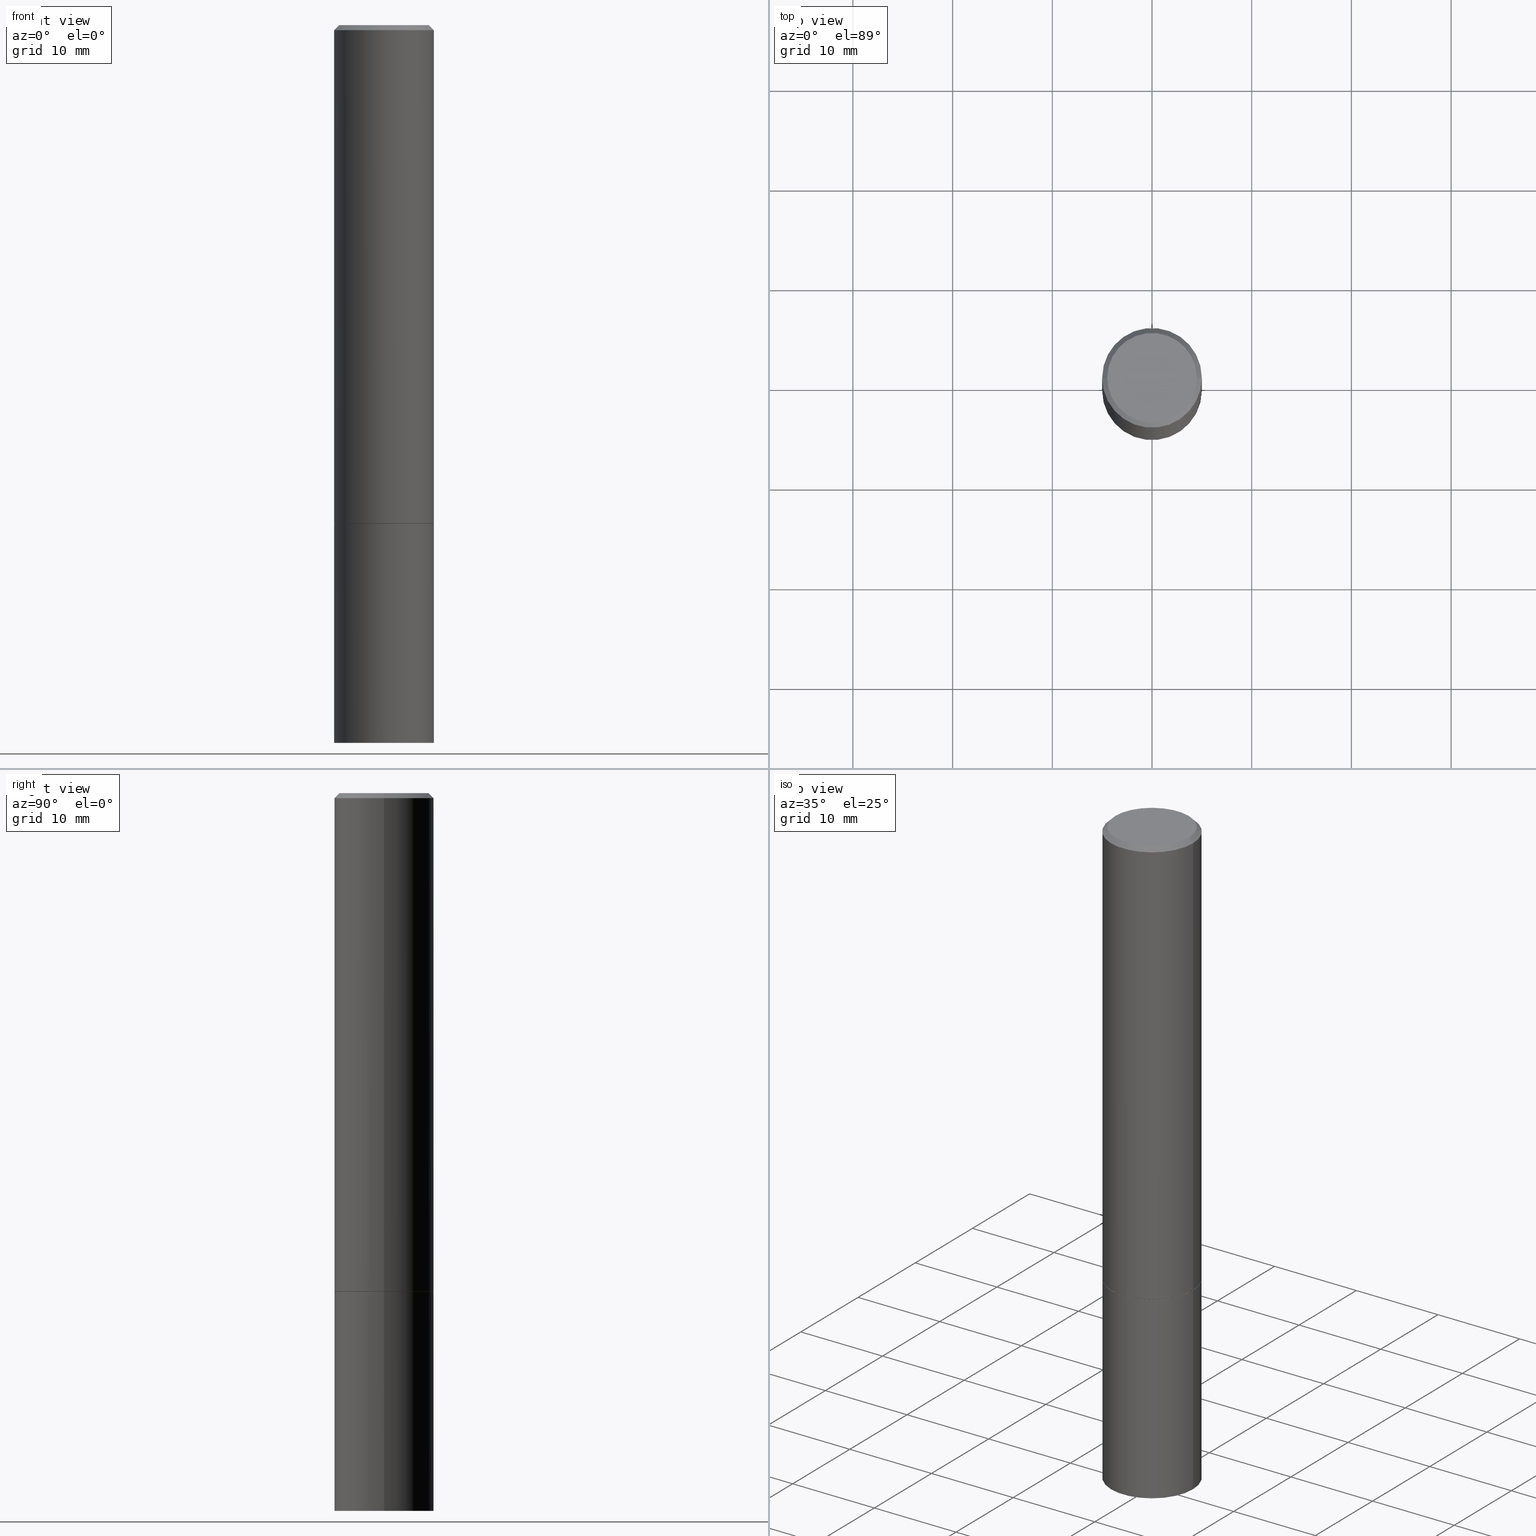
[diagram: canonical four-view strip — front | top / right | iso, engineering-drawing reading convention]
A machine part, canonical four-view strip (front | top / right | iso — engineering-drawing reading convention). The complete STEP part file that produces these views, byte-faithful:
ISO-10303-21;
HEADER;
FILE_DESCRIPTION (( 'STEP AP203' ),
    '1' );
FILE_NAME ('44592.STEP',
    '2024-02-28T07:12:50',
    ( '' ),
    ( '' ),
    'SwSTEP 2.0',
    'SolidWorks 2023',
    '' );
FILE_SCHEMA (( 'CONFIG_CONTROL_DESIGN' ));
ENDSEC;

DATA;
#1 = FACE_OUTER_BOUND ( 'NONE', #25, .T. ) ;
#2 = CARTESIAN_POINT ( 'NONE',  ( -0.1958499999999999963, -5.481383067526574928E-15, -1.968499999999999694 ) ) ;
#3 = EDGE_CURVE ( 'NONE', #230, #363, #111, .T. ) ;
#4 = AXIS2_PLACEMENT_3D ( 'NONE', #157, #158, #110 ) ;
#5 = AXIS2_PLACEMENT_3D ( 'NONE', #234, #347, #202 ) ;
#6 = DIRECTION ( 'NONE',  ( 1.000000000000000000, -6.982962677686266711E-15, 0.000000000000000000 ) ) ;
#7 = DIRECTION ( 'NONE',  ( 2.438088387897960049E-29, -3.491481338843145188E-15, -1.000000000000000000 ) ) ;
#8 = ORIENTED_EDGE ( 'NONE', *, *, #186, .F. ) ;
#9 = DIRECTION ( 'NONE',  ( 1.000000000000000000, -6.982962677686267499E-15, 0.000000000000000000 ) ) ;
#10 = EDGE_CURVE ( 'NONE', #118, #223, #336, .T. ) ;
#11 = FACE_OUTER_BOUND ( 'NONE', #170, .T. ) ;
#12 = CC_DESIGN_APPROVAL ( #211, ( #251 ) ) ;
#13 = LENGTH_MEASURE_WITH_UNIT ( LENGTH_MEASURE( 0.02539999999999999897 ), #310 );
#14 = EDGE_LOOP ( 'NONE', ( #39, #54, #91, #321 ) ) ;
#15 = DATE_TIME_ROLE ( 'creation_date' ) ;
#16 = FACE_OUTER_BOUND ( 'NONE', #14, .T. ) ;
#17 = VECTOR ( 'NONE', #107, 39.37007874015748143 ) ;
#18 = PERSON_AND_ORGANIZATION_ROLE ( 'creator' ) ;
#19 = EDGE_LOOP ( 'NONE', ( #67, #344, #115, #213 ) ) ;
#20 = PERSON_AND_ORGANIZATION_ROLE ( 'classification_officer' ) ;
#21 = ORIENTED_EDGE ( 'NONE', *, *, #156, .F. ) ;
#22 = APPROVAL_ROLE ( '' ) ;
#23 = AXIS2_PLACEMENT_3D ( 'NONE', #297, #323, #206 ) ;
#24 = SECURITY_CLASSIFICATION ( '', '', #337 ) ;
#25 = EDGE_LOOP ( 'NONE', ( #176, #196 ) ) ;
#26 = APPROVAL ( #193, 'UNSPECIFIED' ) ;
#27 = ORIENTED_EDGE ( 'NONE', *, *, #77, .F. ) ;
#28 = LINE ( 'NONE', #2, #301 ) ;
#29 = ORIENTED_EDGE ( 'NONE', *, *, #290, .F. ) ;
#30 = DIRECTION ( 'NONE',  ( 1.000000000000000000, -6.982962677686265922E-15, 4.876176775795935793E-29 ) ) ;
#31 = CIRCLE ( 'NONE', #72, 0.1968500000000000250 ) ;
#32 = ADVANCED_FACE ( 'NONE', ( #16 ), #197, .T. ) ;
#33 = LINE ( 'NONE', #63, #314 ) ;
#34 = FACE_OUTER_BOUND ( 'NONE', #96, .T. ) ;
#35 = PLANE ( 'NONE',  #147 ) ;
#36 = AXIS2_PLACEMENT_3D ( 'NONE', #268, #100, #102 ) ;
#37 = CARTESIAN_POINT ( 'NONE',  ( 4.890937612370283668E-31, -6.982962677686305168E-17, -0.02000000000000004205 ) ) ;
#38 = DIRECTION ( 'NONE',  ( 1.000000000000000000, -6.982962677686268288E-15, 0.000000000000000000 ) ) ;
#39 = ORIENTED_EDGE ( 'NONE', *, *, #166, .F. ) ;
#40 = EDGE_CURVE ( 'NONE', #165, #230, #191, .T. ) ;
#41 = CARTESIAN_POINT ( 'NONE',  ( -0.1968500000000000250, 1.398703375343757393E-15, -9.682923725166783677E-30 ) ) ;
#42 = DESIGN_CONTEXT ( 'detailed design', #261, 'design' ) ;
#43 = PLANE ( 'NONE',  #79 ) ;
#44 = CARTESIAN_POINT ( 'NONE',  ( -0.1768499999999997851, 1.269851762937246069E-15, 4.268512490091652920E-18 ) ) ;
#45 = VECTOR ( 'NONE', #73, 39.37007874015748143 ) ;
#46 = DIRECTION ( 'NONE',  ( -2.445468806185136597E-29, 3.491481338843145583E-15, 1.000000000000000000 ) ) ;
#47 =( NAMED_UNIT ( * ) PLANE_ANGLE_UNIT ( ) SI_UNIT ( $, .RADIAN. ) );
#48 = APPROVAL_STATUS ( 'not_yet_approved' ) ;
#49 = DATE_AND_TIME ( #163, #198 ) ;
#50 = PERSON ( 'UNSPECIFIED', 'UNSPECIFIED', 'UNSPECIFIED', ('UNSPECIFIED'), ('UNSPECIFIED'), ('UNSPECIFIED') ) ;
#51 = ORIENTED_EDGE ( 'NONE', *, *, #222, .T. ) ;
#52 = ORIENTED_EDGE ( 'NONE', *, *, #3, .T. ) ;
#53 = MECHANICAL_CONTEXT ( 'NONE', #68, 'mechanical' ) ;
#54 = ORIENTED_EDGE ( 'NONE', *, *, #113, .F. ) ;
#55 = CIRCLE ( 'NONE', #106, 0.1968500000000000250 ) ;
#56 = ADVANCED_FACE ( 'NONE', ( #1 ), #35, .F. ) ;
#57 = ORIENTED_EDGE ( 'NONE', *, *, #40, .T. ) ;
#58 = CARTESIAN_POINT ( 'NONE',  ( 0.000000000000000000, 0.000000000000000000, 0.000000000000000000 ) ) ;
#59 = ORIENTED_EDGE ( 'NONE', *, *, #222, .F. ) ;
#60 = DIRECTION ( 'NONE',  ( -2.445468806185136597E-29, 3.491481338843145583E-15, 1.000000000000000000 ) ) ;
#61 = PRODUCT_RELATED_PRODUCT_CATEGORY ( 'detail', '', ( #256 ) ) ;
#62 = UNCERTAINTY_MEASURE_WITH_UNIT (LENGTH_MEASURE( 1.000000000000000082E-05 ), #254, 'distance_accuracy_value', 'NONE');
#63 = CARTESIAN_POINT ( 'NONE',  ( 0.1958499999999999963, -8.240594255937587301E-15, -1.968499999999999694 ) ) ;
#64 = CIRCLE ( 'NONE', #329, 0.1958499999999999963 ) ;
#65 = AXIS2_PLACEMENT_3D ( 'NONE', #248, #220, #221 ) ;
#66 = DIRECTION ( 'NONE',  ( -1.000000000000000000, 6.982962677686265922E-15, -4.876176775795935793E-29 ) ) ;
#67 = ORIENTED_EDGE ( 'NONE', *, *, #275, .T. ) ;
#68 = APPLICATION_CONTEXT ( 'configuration controlled 3d designs of mechanical parts and assemblies' ) ;
#69 = CARTESIAN_POINT ( 'NONE',  ( -0.1968500000000000250, -6.986263633954999297E-15, -2.834600000000000009 ) ) ;
#70 = CARTESIAN_POINT ( 'NONE',  ( 1.374596203102589532E-15, 0.1968499999999931416, -1.968500000000000805 ) ) ;
#71 = CARTESIAN_POINT ( 'NONE',  ( -0.1958499999999999963, -5.476084613178352526E-15, -1.968499999999999694 ) ) ;
#72 = AXIS2_PLACEMENT_3D ( 'NONE', #345, #175, #123 ) ;
#73 = DIRECTION ( 'NONE',  ( -2.445468806185136877E-29, 3.491481338843145188E-15, 1.000000000000000000 ) ) ;
#74 = DIRECTION ( 'NONE',  ( 1.000000000000000000, -6.982962677686266711E-15, 4.875932113059884174E-29 ) ) ;
#75 = CARTESIAN_POINT ( 'NONE',  ( 0.1968499999999997752, -1.420318657638187544E-15, -0.02000000000000004205 ) ) ;
#76 = FACE_OUTER_BOUND ( 'NONE', #126, .T. ) ;
#77 = EDGE_CURVE ( 'NONE', #342, #363, #243, .T. ) ;
#78 = CYLINDRICAL_SURFACE ( 'NONE', #4, 0.1968500000000000250 ) ;
#79 = AXIS2_PLACEMENT_3D ( 'NONE', #350, #104, #330 ) ;
#80 = CARTESIAN_POINT ( 'NONE',  ( 4.890937612370283668E-31, -6.982962677686305168E-17, -0.02000000000000004205 ) ) ;
#81 = CARTESIAN_POINT ( 'NONE',  ( 0.1958499999999999963, -8.240594255937587301E-15, -1.968499999999999694 ) ) ;
#82 = CARTESIAN_POINT ( 'NONE',  ( -0.1968499999999997752, 1.304766576325676930E-15, -0.02000000000000004205 ) ) ;
#83 = APPROVAL_ROLE ( '' ) ;
#84 = APPROVAL_STATUS ( 'not_yet_approved' ) ;
#85 = ADVANCED_FACE ( 'NONE', ( #218 ), #217, .T. ) ;
#86 = VECTOR ( 'NONE', #187, 39.37007874015748143 ) ;
#87 = AXIS2_PLACEMENT_3D ( 'NONE', #312, #303, #9 ) ;
#88 = PERSON_AND_ORGANIZATION ( #50, #339 ) ;
#89 = VERTEX_POINT ( 'NONE', #81 ) ;
#90 = APPROVAL_DATE_TIME ( #341, #26 ) ;
#91 = ORIENTED_EDGE ( 'NONE', *, *, #10, .T. ) ;
#92 = PERSON_AND_ORGANIZATION ( #50, #339 ) ;
#93 = ORIENTED_EDGE ( 'NONE', *, *, #97, .T. ) ;
#94 = LOCAL_TIME ( 2, 12, 50.00000000000000000, #253 ) ;
#95 = AXIS2_PLACEMENT_3D ( 'NONE', #242, #307, #161 ) ;
#96 = EDGE_LOOP ( 'NONE', ( #257, #51 ) ) ;
#97 = EDGE_CURVE ( 'NONE', #207, #364, #129, .T. ) ;
#98 = CARTESIAN_POINT ( 'NONE',  ( 0.1968499999999997752, -1.420318657638187544E-15, -0.02000000000000004205 ) ) ;
#99 = AXIS2_PLACEMENT_3D ( 'NONE', #335, #128, #130 ) ;
#100 = DIRECTION ( 'NONE',  ( -2.445468806185136597E-29, 3.491481338843145583E-15, 1.000000000000000000 ) ) ;
#101 = LINE ( 'NONE', #98, #231 ) ;
#102 = DIRECTION ( 'NONE',  ( 1.000000000000000000, -6.982962677686267499E-15, 0.000000000000000000 ) ) ;
#103 = CC_DESIGN_DATE_AND_TIME_ASSIGNMENT ( #287, #361, ( #24 ) ) ;
#104 = DIRECTION ( 'NONE',  ( 2.438088387897960049E-29, -3.491481338843145188E-15, -1.000000000000000000 ) ) ;
#105 = CARTESIAN_POINT ( 'NONE',  ( -1.043851414335219820E-46, 1.490343170380447200E-32, 4.268512490100411279E-18 ) ) ;
#106 = AXIS2_PLACEMENT_3D ( 'NONE', #302, #277, #241 ) ;
#107 = DIRECTION ( 'NONE',  ( -0.7071067811865465735, 2.468850131082246805E-15, -0.7071067811865484609 ) ) ;
#108 = CARTESIAN_POINT ( 'NONE',  ( 4.813905344975440714E-29, -6.872981015512730918E-15, -1.968499999999999694 ) ) ;
#109 = ADVANCED_FACE ( 'NONE', ( #76 ), #153, .T. ) ;
#110 = DIRECTION ( 'NONE',  ( 1.000000000000000000, -6.982962677686265922E-15, 4.876176775795935793E-29 ) ) ;
#111 = LINE ( 'NONE', #219, #249 ) ;
#112 = APPROVAL_ROLE ( '' ) ;
#113 = EDGE_CURVE ( 'NONE', #118, #181, #134, .T. ) ;
#114 = COORDINATED_UNIVERSAL_TIME_OFFSET ( 5, 0, .BEHIND. ) ;
#115 = ORIENTED_EDGE ( 'NONE', *, *, #267, .F. ) ;
#116 = AXIS2_PLACEMENT_3D ( 'NONE', #296, #121, #236 ) ;
#117 = CALENDAR_DATE ( 2024, 28, 2 ) ;
#118 = VERTEX_POINT ( 'NONE', #44 ) ;
#119 = DIRECTION ( 'NONE',  ( 1.000000000000000000, -6.982962677686268288E-15, 0.000000000000000000 ) ) ;
#120 = CARTESIAN_POINT ( 'NONE',  ( 0.1968500000000000250, -8.244085737276430308E-15, -1.967500000000000027 ) ) ;
#121 = DIRECTION ( 'NONE',  ( 2.438088387897960049E-29, -3.491481338843145188E-15, -1.000000000000000000 ) ) ;
#122 = CC_DESIGN_APPROVAL ( #299, ( #204 ) ) ;
#123 = DIRECTION ( 'NONE',  ( 1.000000000000000000, -6.982962677686267499E-15, 0.000000000000000000 ) ) ;
#124 = AXIS2_PLACEMENT_3D ( 'NONE', #185, #209, #327 ) ;
#125 = ADVANCED_FACE ( 'NONE', ( #266 ), #200, .F. ) ;
#126 = EDGE_LOOP ( 'NONE', ( #59, #316, #318, #194 ) ) ;
#127 = FACE_OUTER_BOUND ( 'NONE', #201, .T. ) ;
#128 = DIRECTION ( 'NONE',  ( -2.445468806185136597E-29, 3.491481338843145583E-15, 1.000000000000000000 ) ) ;
#129 = LINE ( 'NONE', #250, #86 ) ;
#130 = DIRECTION ( 'NONE',  ( 1.000000000000000000, -6.982962677686266711E-15, 4.875932113059884174E-29 ) ) ;
#131 = CARTESIAN_POINT ( 'NONE',  ( -0.1968499999999997752, 1.304766576325676930E-15, -0.02000000000000004205 ) ) ;
#132 = PERSON_AND_ORGANIZATION_ROLE ( 'creator' ) ;
#133 = CARTESIAN_POINT ( 'NONE',  ( 4.890937612370283668E-31, -6.982962677686305168E-17, -0.02000000000000004205 ) ) ;
#134 = CIRCLE ( 'NONE', #352, 0.1768499999999997851 ) ;
#135 = CC_DESIGN_DATE_AND_TIME_ASSIGNMENT ( #357, #15, ( #204 ) ) ;
#136 = APPROVAL_DATE_TIME ( #49, #299 ) ;
#137 = PERSON_AND_ORGANIZATION_ROLE ( 'design_supplier' ) ;
#138 = ORIENTED_EDGE ( 'NONE', *, *, #215, .F. ) ;
#139 = PERSON_AND_ORGANIZATION ( #50, #339 ) ;
#140 = APPROVAL_PERSON_ORGANIZATION ( #280, #299, #83 ) ;
#141 = AXIS2_PLACEMENT_3D ( 'NONE', #58, #148, #30 ) ;
#142 = COORDINATED_UNIVERSAL_TIME_OFFSET ( 5, 0, .BEHIND. ) ;
#143 = PRODUCT_DEFINITION_SHAPE ( 'NONE', 'NONE',  #204 ) ;
#144 = ORIENTED_EDGE ( 'NONE', *, *, #40, .F. ) ;
#145 = DIRECTION ( 'NONE',  ( 0.7071067811866199593, -2.468850131083015945E-15, 0.7071067811864750752 ) ) ;
#146 = EDGE_CURVE ( 'NONE', #89, #233, #159, .T. ) ;
#147 = AXIS2_PLACEMENT_3D ( 'NONE', #70, #7, #66 ) ;
#148 = DIRECTION ( 'NONE',  ( -2.445468806185136597E-29, 3.491481338843145583E-15, 1.000000000000000000 ) ) ;
#149 = DIMENSIONAL_EXPONENTS ( 1.000000000000000000, 0.000000000000000000, 0.000000000000000000, 0.000000000000000000, 0.000000000000000000, 0.000000000000000000, 0.000000000000000000 ) ;
#150 = EDGE_CURVE ( 'NONE', #89, #207, #33, .T. ) ;
#151 = CC_DESIGN_SECURITY_CLASSIFICATION ( #24, ( #251 ) ) ;
#152 = LINE ( 'NONE', #308, #45 ) ;
#153 = CONICAL_SURFACE ( 'NONE', #95, 0.1968499999999997752, 0.7853981633974469467 ) ;
#154 = DIRECTION ( 'NONE',  ( -2.445468806185136597E-29, 3.491481338843145583E-15, 1.000000000000000000 ) ) ;
#155 = DIRECTION ( 'NONE',  ( -2.445468806185136877E-29, 3.491481338843145188E-15, 1.000000000000000000 ) ) ;
#156 = EDGE_CURVE ( 'NONE', #233, #324, #28, .T. ) ;
#157 = CARTESIAN_POINT ( 'NONE',  ( 0.000000000000000000, 0.000000000000000000, 0.000000000000000000 ) ) ;
#158 = DIRECTION ( 'NONE',  ( -2.445468806185136597E-29, 3.491481338843145583E-15, 1.000000000000000000 ) ) ;
#159 = CIRCLE ( 'NONE', #23, 0.1958499999999999963 ) ;
#160 = FACE_OUTER_BOUND ( 'NONE', #19, .T. ) ;
#161 = DIRECTION ( 'NONE',  ( -1.000000000000000000, 6.982962677686266711E-15, 0.000000000000000000 ) ) ;
#162 = CC_DESIGN_PERSON_AND_ORGANIZATION_ASSIGNMENT ( #92, #137, ( #251 ) ) ;
#163 = CALENDAR_DATE ( 2024, 28, 2 ) ;
#164 = APPROVAL_DATE_TIME ( #359, #211 ) ;
#165 = VERTEX_POINT ( 'NONE', #69 ) ;
#166 = EDGE_CURVE ( 'NONE', #181, #364, #101, .T. ) ;
#167 = PERSON_AND_ORGANIZATION ( #50, #339 ) ;
#168 = ORIENTED_EDGE ( 'NONE', *, *, #173, .T. ) ;
#169 = COORDINATED_UNIVERSAL_TIME_OFFSET ( 5, 0, .BEHIND. ) ;
#170 = EDGE_LOOP ( 'NONE', ( #21, #168, #305, #29 ) ) ;
#171 = AXIS2_PLACEMENT_3D ( 'NONE', #80, #214, #6 ) ;
#172 = MANIFOLD_SOLID_BREP ( 'Body-Move/Copy2[2]', #356 ) ;
#173 = EDGE_CURVE ( 'NONE', #233, #89, #64, .T. ) ;
#174 = ORIENTED_EDGE ( 'NONE', *, *, #146, .T. ) ;
#175 = DIRECTION ( 'NONE',  ( -2.445468806185136597E-29, 3.491481338843145583E-15, 1.000000000000000000 ) ) ;
#176 = ORIENTED_EDGE ( 'NONE', *, *, #215, .T. ) ;
#177 = AXIS2_PLACEMENT_3D ( 'NONE', #133, #252, #239 ) ;
#178 = DIRECTION ( 'NONE',  ( -2.445468806185136597E-29, 3.491481338843145583E-15, 1.000000000000000000 ) ) ;
#179 = CLOSED_SHELL ( 'NONE', ( #346, #262, #56, #199 ) ) ;
#180 = DIRECTION ( 'NONE',  ( 1.000000000000000000, -6.982962677686266711E-15, 4.876176775795935793E-29 ) ) ;
#181 = VERTEX_POINT ( 'NONE', #232 ) ;
#182 = FACE_OUTER_BOUND ( 'NONE', #294, .T. ) ;
#183 = CARTESIAN_POINT ( 'NONE',  ( 0.1968500000000000250, -8.247577218615273316E-15, -1.968500000000000139 ) ) ;
#184 = LOCAL_TIME ( 2, 12, 50.00000000000000000, #142 ) ;
#185 = CARTESIAN_POINT ( 'NONE',  ( 4.811459876169256232E-29, -6.869489534173888700E-15, -1.967500000000000027 ) ) ;
#186 = EDGE_CURVE ( 'NONE', #230, #165, #31, .T. ) ;
#187 = DIRECTION ( 'NONE',  ( -2.445468806185136877E-29, 3.491481338843145188E-15, 1.000000000000000000 ) ) ;
#188 =( NAMED_UNIT ( * ) SI_UNIT ( $, .STERADIAN. ) SOLID_ANGLE_UNIT ( ) );
#189 = PERSON_AND_ORGANIZATION ( #50, #339 ) ;
#190 = ADVANCED_FACE ( 'NONE', ( #34 ), #365, .F. ) ;
#191 = CIRCLE ( 'NONE', #36, 0.1968500000000000250 ) ;
#192 = EDGE_LOOP ( 'NONE', ( #265, #260 ) ) ;
#193 = APPROVAL_STATUS ( 'not_yet_approved' ) ;
#194 = ORIENTED_EDGE ( 'NONE', *, *, #10, .F. ) ;
#195 = SHAPE_DEFINITION_REPRESENTATION ( #143, #358 ) ;
#196 = ORIENTED_EDGE ( 'NONE', *, *, #77, .T. ) ;
#197 = CONICAL_SURFACE ( 'NONE', #177, 0.1968499999999997752, 0.7853981633974469467 ) ;
#198 = LOCAL_TIME ( 2, 12, 50.00000000000000000, #169 ) ;
#199 = ADVANCED_FACE ( 'NONE', ( #238 ), #349, .T. ) ;
#200 = PLANE ( 'NONE',  #348 ) ;
#201 = EDGE_LOOP ( 'NONE', ( #225, #354, #93, #293 ) ) ;
#202 = DIRECTION ( 'NONE',  ( 1.000000000000000000, -6.982962677686267499E-15, 0.000000000000000000 ) ) ;
#203 = ORIENTED_EDGE ( 'NONE', *, *, #317, .T. ) ;
#204 = PRODUCT_DEFINITION ( 'UNKNOWN', '', #251, #42 ) ;
#205 = CIRCLE ( 'NONE', #99, 0.1768499999999997851 ) ;
#206 = DIRECTION ( 'NONE',  ( 1.000000000000000000, -6.982962677686268288E-15, 0.000000000000000000 ) ) ;
#207 = VERTEX_POINT ( 'NONE', #120 ) ;
#208 = CYLINDRICAL_SURFACE ( 'NONE', #334, 0.1968499999999999139 ) ;
#209 = DIRECTION ( 'NONE',  ( -2.445468806185136597E-29, 3.491481338843145583E-15, 1.000000000000000000 ) ) ;
#210 = CIRCLE ( 'NONE', #272, 0.1968499999999997752 ) ;
#211 = APPROVAL ( #84, 'UNSPECIFIED' ) ;
#212 = DIRECTION ( 'NONE',  ( -2.445468806185136597E-29, 3.491481338843145583E-15, 1.000000000000000000 ) ) ;
#213 = ORIENTED_EDGE ( 'NONE', *, *, #97, .F. ) ;
#214 = DIRECTION ( 'NONE',  ( -2.445468806185136597E-29, 3.491481338843145583E-15, 1.000000000000000000 ) ) ;
#215 = EDGE_CURVE ( 'NONE', #363, #342, #362, .T. ) ;
#216 = CARTESIAN_POINT ( 'NONE',  ( 0.1968500000000000250, -1.127154920618732249E-14, -2.834600000000000009 ) ) ;
#217 = CONICAL_SURFACE ( 'NONE', #259, 0.1958499999999999963, 0.7853981633975507526 ) ;
#218 = FACE_OUTER_BOUND ( 'NONE', #274, .T. ) ;
#219 = CARTESIAN_POINT ( 'NONE',  ( 0.1968500000000000250, -1.374596203102541608E-15, 9.598753983154300858E-30 ) ) ;
#220 = DIRECTION ( 'NONE',  ( 0.000000000000000000, 0.000000000000000000, 1.000000000000000000 ) ) ;
#221 = DIRECTION ( 'NONE',  ( 1.000000000000000000, 0.000000000000000000, 0.000000000000000000 ) ) ;
#222 = EDGE_CURVE ( 'NONE', #181, #118, #205, .T. ) ;
#223 = VERTEX_POINT ( 'NONE', #131 ) ;
#224 = PERSON_AND_ORGANIZATION ( #50, #339 ) ;
#225 = ORIENTED_EDGE ( 'NONE', *, *, #235, .F. ) ;
#226 = COORDINATED_UNIVERSAL_TIME_OFFSET ( 5, 0, .BEHIND. ) ;
#227 = ORIENTED_EDGE ( 'NONE', *, *, #275, .F. ) ;
#228 = APPLICATION_PROTOCOL_DEFINITION ( 'international standard', 'config_control_design', 1994, #68 ) ;
#229 = CC_DESIGN_PERSON_AND_ORGANIZATION_ASSIGNMENT ( #189, #132, ( #251 ) ) ;
#230 = VERTEX_POINT ( 'NONE', #216 ) ;
#231 = VECTOR ( 'NONE', #298, 39.37007874015748143 ) ;
#232 = CARTESIAN_POINT ( 'NONE',  ( 0.1768499999999997851, -1.316798864272040563E-15, 4.268512490109333727E-18 ) ) ;
#233 = VERTEX_POINT ( 'NONE', #71 ) ;
#234 = CARTESIAN_POINT ( 'NONE',  ( 4.813905344975441835E-29, -6.872981015512731707E-15, -1.968500000000000139 ) ) ;
#235 = EDGE_CURVE ( 'NONE', #324, #223, #152, .T. ) ;
#236 = DIRECTION ( 'NONE',  ( -1.000000000000000000, 6.982962677686265922E-15, -4.876176775795935793E-29 ) ) ;
#237 = CC_DESIGN_APPROVAL ( #26, ( #24 ) ) ;
#238 = FACE_OUTER_BOUND ( 'NONE', #292, .T. ) ;
#239 = DIRECTION ( 'NONE',  ( -1.000000000000000000, 6.982962677686266711E-15, 0.000000000000000000 ) ) ;
#240 = CARTESIAN_POINT ( 'NONE',  ( -0.1968500000000000250, -2.070956205131617817E-15, -1.967500000000000027 ) ) ;
#241 = DIRECTION ( 'NONE',  ( 1.000000000000000000, -6.982962677686267499E-15, 0.000000000000000000 ) ) ;
#242 = CARTESIAN_POINT ( 'NONE',  ( 4.890937612370283668E-31, -6.982962677686305168E-17, -0.02000000000000004205 ) ) ;
#243 = CIRCLE ( 'NONE', #87, 0.1968500000000000250 ) ;
#244 = CYLINDRICAL_SURFACE ( 'NONE', #319, 0.1968499999999999139 ) ;
#245 = CARTESIAN_POINT ( 'NONE',  ( 0.000000000000000000, 0.000000000000000000, 0.000000000000000000 ) ) ;
#246 = FACE_OUTER_BOUND ( 'NONE', #263, .T. ) ;
#247 = AXIS2_PLACEMENT_3D ( 'NONE', #108, #212, #332 ) ;
#248 = CARTESIAN_POINT ( 'NONE',  ( 0.000000000000000000, 0.000000000000000000, 0.000000000000000000 ) ) ;
#249 = VECTOR ( 'NONE', #155, 39.37007874015748143 ) ;
#250 = CARTESIAN_POINT ( 'NONE',  ( 0.1968499999999999139, -1.374596203102541017E-15, 9.598753983154295253E-30 ) ) ;
#251 = PRODUCT_DEFINITION_FORMATION_WITH_SPECIFIED_SOURCE ( 'ANY', '', #256, .NOT_KNOWN. ) ;
#252 = DIRECTION ( 'NONE',  ( 2.445468806185136597E-29, -3.491481338843145583E-15, -1.000000000000000000 ) ) ;
#253 = COORDINATED_UNIVERSAL_TIME_OFFSET ( 5, 0, .BEHIND. ) ;
#254 =( CONVERSION_BASED_UNIT ( 'INCH', #13 ) LENGTH_UNIT ( ) NAMED_UNIT ( #149 ) );
#255 = CC_DESIGN_PERSON_AND_ORGANIZATION_ASSIGNMENT ( #167, #18, ( #204 ) ) ;
#256 = PRODUCT ( '44592', '44592', '', ( #53 ) ) ;
#257 = ORIENTED_EDGE ( 'NONE', *, *, #113, .T. ) ;
#258 = CALENDAR_DATE ( 2024, 28, 2 ) ;
#259 = AXIS2_PLACEMENT_3D ( 'NONE', #328, #46, #38 ) ;
#260 = ORIENTED_EDGE ( 'NONE', *, *, #173, .F. ) ;
#261 = APPLICATION_CONTEXT ( 'configuration controlled 3d designs of mechanical parts and assemblies' ) ;
#262 = ADVANCED_FACE ( 'NONE', ( #182 ), #43, .T. ) ;
#263 = EDGE_LOOP ( 'NONE', ( #315, #203, #138, #360 ) ) ;
#264 = CARTESIAN_POINT ( 'NONE',  ( 4.813905344975440714E-29, -6.872981015512730918E-15, -1.968499999999999694 ) ) ;
#265 = ORIENTED_EDGE ( 'NONE', *, *, #146, .F. ) ;
#266 = FACE_OUTER_BOUND ( 'NONE', #192, .T. ) ;
#267 = EDGE_CURVE ( 'NONE', #364, #223, #291, .T. ) ;
#268 = CARTESIAN_POINT ( 'NONE',  ( 6.931925878012387517E-29, -9.896953003084780885E-15, -2.834600000000000009 ) ) ;
#269 = DIRECTION ( 'NONE',  ( -2.438088387897960049E-29, 3.491481338843145188E-15, 1.000000000000000000 ) ) ;
#270 = DIRECTION ( 'NONE',  ( 1.000000000000000000, -6.982962677686265922E-15, 4.876176775795935793E-29 ) ) ;
#271 = VECTOR ( 'NONE', #313, 39.37007874015748143 ) ;
#272 = AXIS2_PLACEMENT_3D ( 'NONE', #37, #154, #333 ) ;
#273 = CARTESIAN_POINT ( 'NONE',  ( 0.000000000000000000, 0.000000000000000000, 0.000000000000000000 ) ) ;
#274 = EDGE_LOOP ( 'NONE', ( #174, #288, #227, #281 ) ) ;
#275 = EDGE_CURVE ( 'NONE', #207, #324, #283, .T. ) ;
#276 = CARTESIAN_POINT ( 'NONE',  ( -0.1968500000000000250, -6.986263633954999297E-15, -1.968500000000000139 ) ) ;
#277 = DIRECTION ( 'NONE',  ( -2.445468806185136597E-29, 3.491481338843145583E-15, 1.000000000000000000 ) ) ;
#278 = ADVANCED_FACE ( 'NONE', ( #127 ), #208, .T. ) ;
#279 = LOCAL_TIME ( 2, 12, 50.00000000000000000, #226 ) ;
#280 = PERSON_AND_ORGANIZATION ( #50, #339 ) ;
#281 = ORIENTED_EDGE ( 'NONE', *, *, #150, .F. ) ;
#282 = PERSON_AND_ORGANIZATION_ROLE ( 'design_owner' ) ;
#283 = CIRCLE ( 'NONE', #124, 0.1968500000000000250 ) ;
#284 = CC_DESIGN_PERSON_AND_ORGANIZATION_ASSIGNMENT ( #285, #20, ( #24 ) ) ;
#285 = PERSON_AND_ORGANIZATION ( #50, #339 ) ;
#286 = ORIENTED_EDGE ( 'NONE', *, *, #317, .F. ) ;
#287 = DATE_AND_TIME ( #338, #325 ) ;
#288 = ORIENTED_EDGE ( 'NONE', *, *, #156, .T. ) ;
#289 = CALENDAR_DATE ( 2024, 28, 2 ) ;
#290 = EDGE_CURVE ( 'NONE', #324, #207, #55, .T. ) ;
#291 = CIRCLE ( 'NONE', #171, 0.1968499999999997752 ) ;
#292 = EDGE_LOOP ( 'NONE', ( #286, #57, #52, #27 ) ) ;
#293 = ORIENTED_EDGE ( 'NONE', *, *, #340, .F. ) ;
#294 = EDGE_LOOP ( 'NONE', ( #8, #144 ) ) ;
#295 = ADVANCED_FACE ( 'NONE', ( #160 ), #244, .T. ) ;
#296 = CARTESIAN_POINT ( 'NONE',  ( 1.234936949548814617E-15, 0.1768499999999997851, -6.153342185293593634E-16 ) ) ;
#297 = CARTESIAN_POINT ( 'NONE',  ( 4.813905344975440714E-29, -6.872981015512730918E-15, -1.968499999999999694 ) ) ;
#298 = DIRECTION ( 'NONE',  ( 0.7071067811865465735, -7.319954787623252890E-15, -0.7071067811865484609 ) ) ;
#299 = APPROVAL ( #48, 'UNSPECIFIED' ) ;
#300 = APPROVAL_PERSON_ORGANIZATION ( #224, #211, #112 ) ;
#301 = VECTOR ( 'NONE', #322, 39.37007874015748143 ) ;
#302 = CARTESIAN_POINT ( 'NONE',  ( 4.811459876169256232E-29, -6.869489534173888700E-15, -1.967500000000000027 ) ) ;
#303 = DIRECTION ( 'NONE',  ( -2.445468806185136597E-29, 3.491481338843145583E-15, 1.000000000000000000 ) ) ;
#304 = MANIFOLD_SOLID_BREP ( 'Body-Move/Copy2[1]', #179 ) ;
#305 = ORIENTED_EDGE ( 'NONE', *, *, #150, .T. ) ;
#306 = DIRECTION ( 'NONE',  ( 1.000000000000000000, -6.982962677686266711E-15, 4.876176775795935793E-29 ) ) ;
#307 = DIRECTION ( 'NONE',  ( 2.445468806185136597E-29, -3.491481338843145583E-15, -1.000000000000000000 ) ) ;
#308 = CARTESIAN_POINT ( 'NONE',  ( -0.1968499999999999139, 1.398703375343756604E-15, -9.682923725166778072E-30 ) ) ;
#309 = APPROVAL_PERSON_ORGANIZATION ( #139, #26, #22 ) ;
#310 =( LENGTH_UNIT ( ) NAMED_UNIT ( * ) SI_UNIT ( $, .METRE. ) );
#311 = CONICAL_SURFACE ( 'NONE', #247, 0.1958499999999999963, 0.7853981633975507526 ) ;
#312 = CARTESIAN_POINT ( 'NONE',  ( 4.813905344975441835E-29, -6.872981015512731707E-15, -1.968500000000000139 ) ) ;
#313 = DIRECTION ( 'NONE',  ( -2.445468806185136877E-29, 3.491481338843145188E-15, 1.000000000000000000 ) ) ;
#314 = VECTOR ( 'NONE', #145, 39.37007874015748143 ) ;
#315 = ORIENTED_EDGE ( 'NONE', *, *, #186, .T. ) ;
#316 = ORIENTED_EDGE ( 'NONE', *, *, #166, .T. ) ;
#317 = EDGE_CURVE ( 'NONE', #165, #342, #353, .T. ) ;
#318 = ORIENTED_EDGE ( 'NONE', *, *, #267, .T. ) ;
#319 = AXIS2_PLACEMENT_3D ( 'NONE', #245, #351, #306 ) ;
#320 =( GEOMETRIC_REPRESENTATION_CONTEXT ( 3 ) GLOBAL_UNCERTAINTY_ASSIGNED_CONTEXT ( ( #62 ) ) GLOBAL_UNIT_ASSIGNED_CONTEXT ( ( #254, #47, #188 ) ) REPRESENTATION_CONTEXT ( 'NONE', 'WORKASPACE' ) );
#321 = ORIENTED_EDGE ( 'NONE', *, *, #340, .T. ) ;
#322 = DIRECTION ( 'NONE',  ( -0.7071067811866199593, 7.493145998870616062E-15, 0.7071067811864750752 ) ) ;
#323 = DIRECTION ( 'NONE',  ( -2.445468806185136597E-29, 3.491481338843145583E-15, 1.000000000000000000 ) ) ;
#324 = VERTEX_POINT ( 'NONE', #240 ) ;
#325 = LOCAL_TIME ( 2, 12, 50.00000000000000000, #114 ) ;
#326 = CC_DESIGN_PERSON_AND_ORGANIZATION_ASSIGNMENT ( #88, #282, ( #256 ) ) ;
#327 = DIRECTION ( 'NONE',  ( 1.000000000000000000, -6.982962677686267499E-15, 0.000000000000000000 ) ) ;
#328 = CARTESIAN_POINT ( 'NONE',  ( 4.813905344975440714E-29, -6.872981015512730918E-15, -1.968499999999999694 ) ) ;
#329 = AXIS2_PLACEMENT_3D ( 'NONE', #264, #60, #119 ) ;
#330 = DIRECTION ( 'NONE',  ( -1.000000000000000000, 6.982962677686265922E-15, -4.876176775795935793E-29 ) ) ;
#331 = DIRECTION ( 'NONE',  ( -2.445468806185136597E-29, 3.491481338843145583E-15, 1.000000000000000000 ) ) ;
#332 = DIRECTION ( 'NONE',  ( 1.000000000000000000, -6.982962677686268288E-15, 0.000000000000000000 ) ) ;
#333 = DIRECTION ( 'NONE',  ( 1.000000000000000000, -6.982962677686266711E-15, 0.000000000000000000 ) ) ;
#334 = AXIS2_PLACEMENT_3D ( 'NONE', #273, #178, #180 ) ;
#335 = CARTESIAN_POINT ( 'NONE',  ( -1.043851414335219820E-46, 1.490343170380447200E-32, 4.268512490100411279E-18 ) ) ;
#336 = LINE ( 'NONE', #82, #17 ) ;
#337 = SECURITY_CLASSIFICATION_LEVEL ( 'unclassified' ) ;
#338 = CALENDAR_DATE ( 2024, 28, 2 ) ;
#339 = ORGANIZATION ( 'UNSPECIFIED', 'UNSPECIFIED', '' ) ;
#340 = EDGE_CURVE ( 'NONE', #223, #364, #210, .T. ) ;
#341 = DATE_AND_TIME ( #258, #184 ) ;
#342 = VERTEX_POINT ( 'NONE', #276 ) ;
#343 = APPLICATION_PROTOCOL_DEFINITION ( 'international standard', 'config_control_design', 1994, #261 ) ;
#344 = ORIENTED_EDGE ( 'NONE', *, *, #235, .T. ) ;
#345 = CARTESIAN_POINT ( 'NONE',  ( 6.931925878012387517E-29, -9.896953003084780885E-15, -2.834600000000000009 ) ) ;
#346 = ADVANCED_FACE ( 'NONE', ( #246 ), #78, .T. ) ;
#347 = DIRECTION ( 'NONE',  ( -2.445468806185136597E-29, 3.491481338843145583E-15, 1.000000000000000000 ) ) ;
#348 = AXIS2_PLACEMENT_3D ( 'NONE', #366, #269, #270 ) ;
#349 = CYLINDRICAL_SURFACE ( 'NONE', #141, 0.1968500000000000250 ) ;
#350 = CARTESIAN_POINT ( 'NONE',  ( 1.374596203102610831E-15, 0.1968499999999901162, -2.834600000000000453 ) ) ;
#351 = DIRECTION ( 'NONE',  ( -2.445468806185136597E-29, 3.491481338843145583E-15, 1.000000000000000000 ) ) ;
#352 = AXIS2_PLACEMENT_3D ( 'NONE', #105, #331, #74 ) ;
#353 = LINE ( 'NONE', #41, #271 ) ;
#354 = ORIENTED_EDGE ( 'NONE', *, *, #290, .T. ) ;
#355 = ADVANCED_FACE ( 'NONE', ( #11 ), #311, .T. ) ;
#356 = CLOSED_SHELL ( 'NONE', ( #85, #295, #109, #32, #278, #355, #125, #190 ) ) ;
#357 = DATE_AND_TIME ( #117, #94 ) ;
#358 = ADVANCED_BREP_SHAPE_REPRESENTATION ( '44592', ( #304, #172, #65 ), #320 ) ;
#359 = DATE_AND_TIME ( #289, #279 ) ;
#360 = ORIENTED_EDGE ( 'NONE', *, *, #3, .F. ) ;
#361 = DATE_TIME_ROLE ( 'classification_date' ) ;
#362 = CIRCLE ( 'NONE', #5, 0.1968500000000000250 ) ;
#363 = VERTEX_POINT ( 'NONE', #183 ) ;
#364 = VERTEX_POINT ( 'NONE', #75 ) ;
#365 = PLANE ( 'NONE',  #116 ) ;
#366 = CARTESIAN_POINT ( 'NONE',  ( 4.813905344975441835E-29, -6.872981015512731707E-15, -1.968500000000000139 ) ) ;
ENDSEC;
END-ISO-10303-21;
